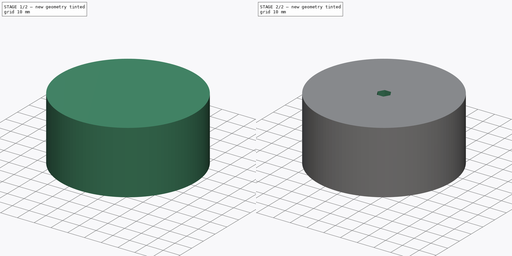
[diagram: build sequence overview — one tinted view per stage of 2, left to right]
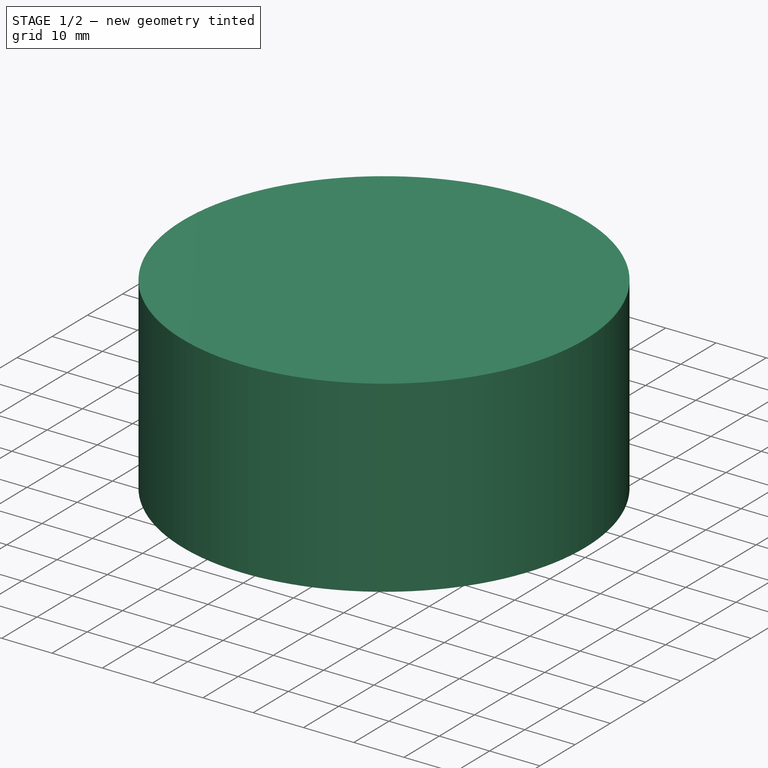
[diagram: stage 1 of 2 — iso view after this stage's code; geometry added in this stage tinted green]
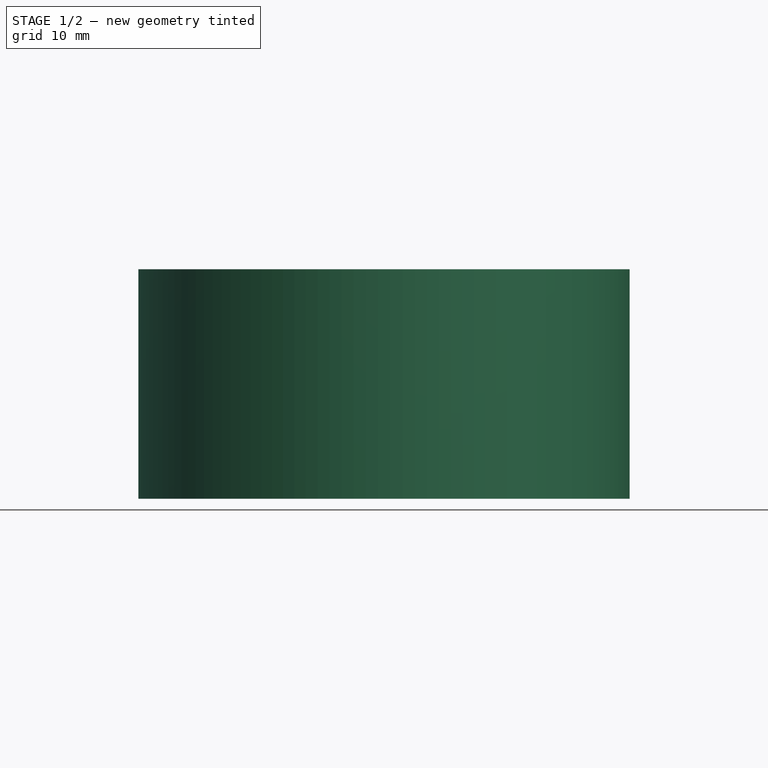
[diagram: stage 1 of 2 — front view after this stage's code; geometry added in this stage tinted green]
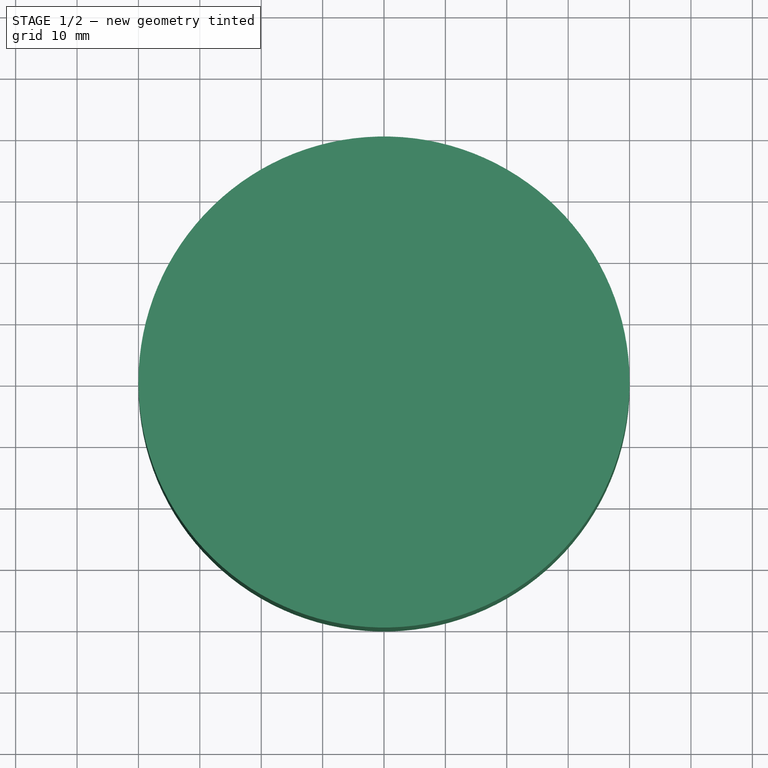
[diagram: stage 1 of 2 — top view after this stage's code; geometry added in this stage tinted green]
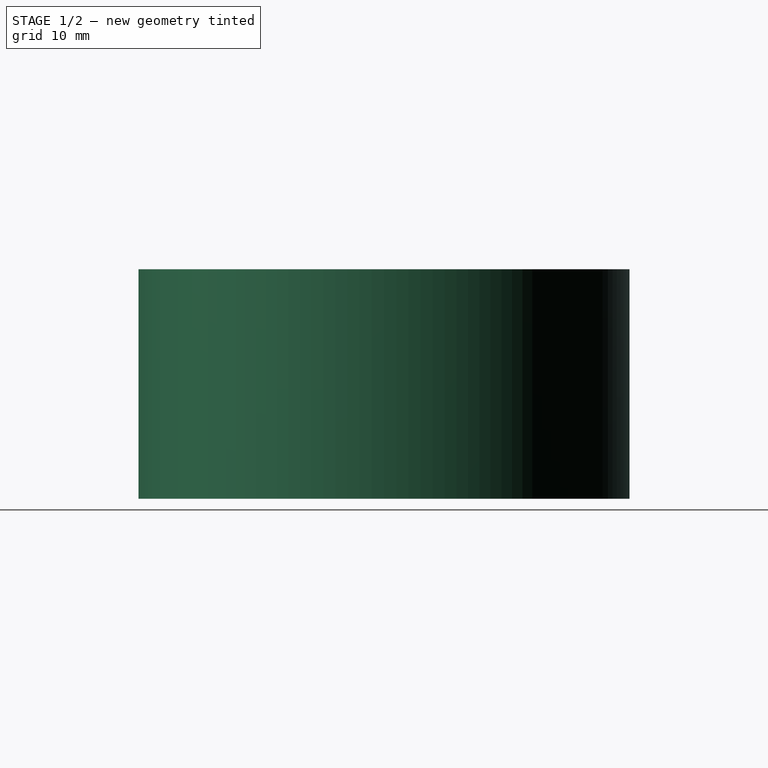
[diagram: stage 1 of 2 — right view after this stage's code; geometry added in this stage tinted green]
FCSTD DOCUMENT  (FreeCAD 1.0R39319 (Git))
Label: hexwheel
License: All rights reserved
LicenseURL: http://en.wikipedia.org/wiki/All_rights_reserved
objects: Sketcher::SketchObject×2, Spreadsheet::Sheet×1, PartDesign::Pad×1, PartDesign::Pocket×1, PartDesign::Body×1
note: 11 computed .brp shape members not serialized (recipe doc carries the construction recipe); baked Part::Feature solids carry a one-line shape summary decoded from their .brp

FEATURE [Spreadsheet::Sheet] Spreadsheet  label="DF-Robot-MechWheel"
  cells = A2='diameter; B2(diameter)=80; A3='hex-center-width; B3(hex_cen_width_y)=6.6; A4='width; B4(width)=37.4; A5='hex-center-width_y; B5(hex_cen_width_x)=7.62; A6='radius; B6(radius)==B2 / 2
FEATURE [Sketcher::SketchObject] Sketch  label="wheel"
  ArcFitTolerance = 1e-06
  AttachmentSupport = -> [XY_Plane]
  FullyConstrained = true
  MakeInternals = false
  MapMode = 5
  expr: Constraints[1] = <<DF-Robot-MechWheel>>.diameter / 2
  expr: Constraints[2] = <<DF-Robot-MechWheel>>.diameter
  sketch-geometry (1):
    g0: Circle CenterX=40 CenterY=0 CenterZ=0 NormalX=0 NormalY=0 NormalZ=1 AngleXU=0 Radius=40
  constraints (3):
    c: Horizontal(g0,g-1)
    c: DistanceX(g-1,g0) = 40
    c: Diameter(g0) = 80
FEATURE [Sketcher::SketchObject] Sketch001
  ArcFitTolerance = 1e-06
  AttachmentSupport = -> [XY_Plane]
  FullyConstrained = true
  MakeInternals = false
  MapMode = 5
  expr: Constraints[17] = <<DF-Robot-MechWheel>>.radius
  expr: Constraints[18] = <<DF-Robot-MechWheel>>.hex_cen_width_y / 2
  expr: Constraints[20] = <<DF-Robot-MechWheel>>.hex_cen_width_y / 2
  sketch-geometry (7):
    g0: LineSegment StartX=43.8105 StartY=-4e-16 StartZ=0 EndX=41.9053 EndY=3.3 EndZ=0
    g1: LineSegment StartX=41.9053 StartY=3.3 StartZ=0 EndX=38.0947 EndY=3.3 EndZ=0
    g2: LineSegment StartX=38.0947 StartY=3.3 StartZ=0 EndX=36.1895 EndY=4e-16 EndZ=0
    g3: LineSegment StartX=36.1895 StartY=4e-16 StartZ=0 EndX=38.0947 EndY=-3.3 EndZ=0
    g4: LineSegment StartX=38.0947 StartY=-3.3 StartZ=0 EndX=41.9053 EndY=-3.3 EndZ=0
    g5: LineSegment StartX=41.9053 StartY=-3.3 StartZ=0 EndX=43.8105 EndY=-4e-16 EndZ=0
    g6: Circle [constr] CenterX=40 CenterY=1e-16 CenterZ=0 NormalX=0 NormalY=0 NormalZ=1 AngleXU=0 Radius=3.81051
  constraints (17):
    c: Coincident(g0,g1)
    c: Coincident(g1,g2)
    c: Coincident(g2,g3)
    c: Coincident(g3,g4)
    c: Coincident(g4,g5)
    c: Coincident(g5,g0)
    c: Equal(g0, g1-g5) x5
    c: PointOnObject(g0,g6)
    c: PointOnObject(g1,g6)
    c: PointOnObject(g2,g6)
    c: PointOnObject(g3,g6)
    c: PointOnObject(g4,g6)
    c: PointOnObject(g5,g6)
    c: DistanceX(g-1,g6) = 40
    c: DistanceY(g3,g-1) = 3.3
    c: DistanceY(g4,g0) = 6.6
    c: DistanceY(g4,g-1) = 3.3
FEATURE [PartDesign::Pad] Pad
  Direction = (0,0,1)
  Length = 37.4
  Length2 = 10
  Profile = -> Sketch
  ReferenceAxis = -> Sketch [N_Axis]
  Suppressed = false
  Type = 0
  expr: Length = <<DF-Robot-MechWheel>>.width
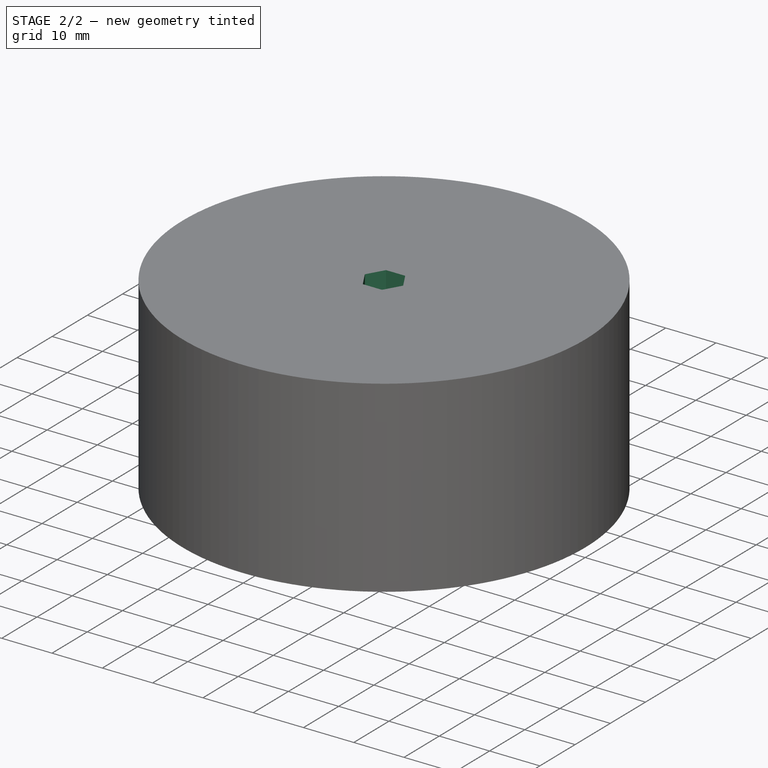
[diagram: stage 2 of 2 — iso view after this stage's code; geometry added in this stage tinted green]
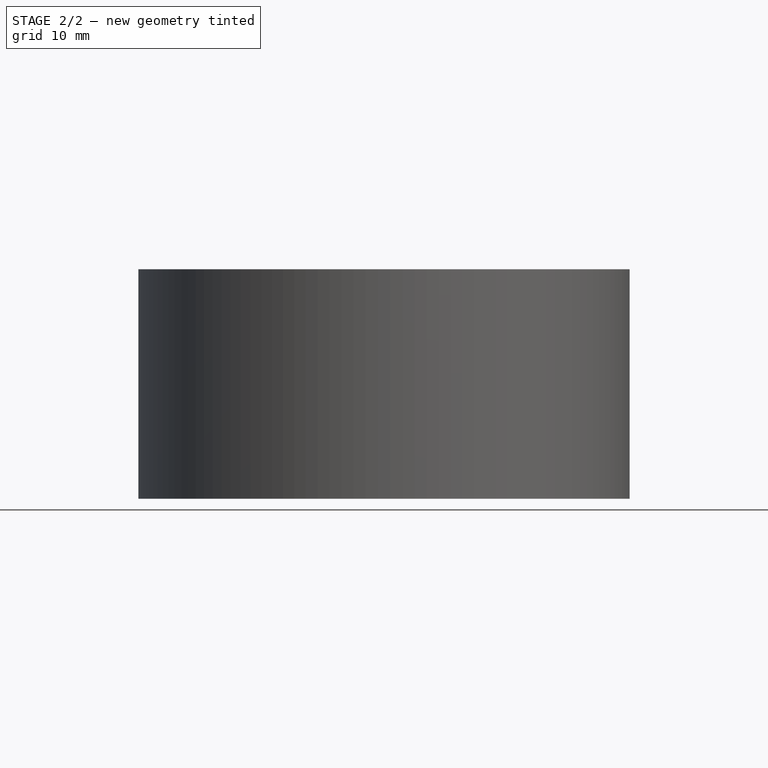
[diagram: stage 2 of 2 — front view after this stage's code; geometry added in this stage tinted green]
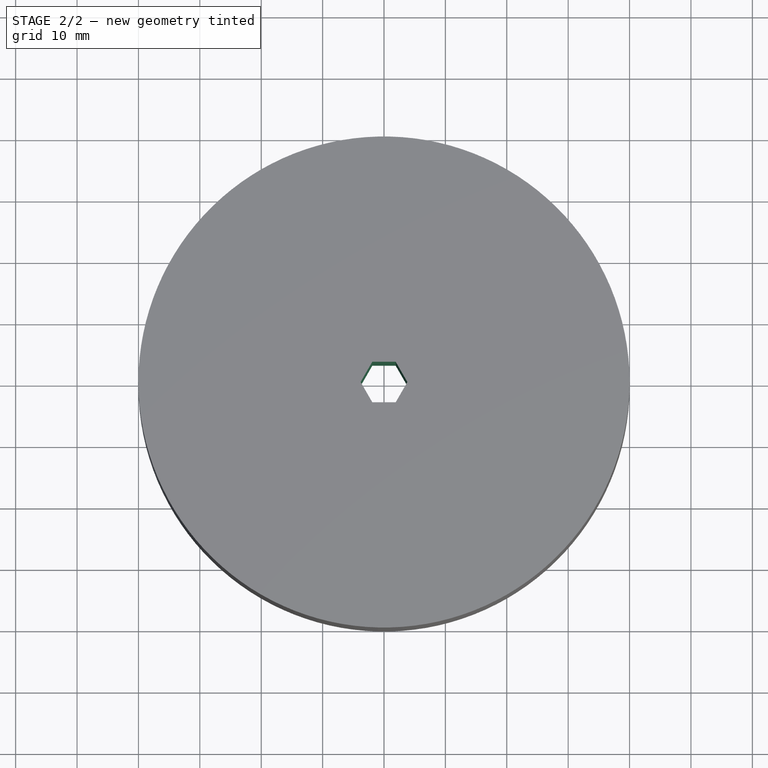
[diagram: stage 2 of 2 — top view after this stage's code; geometry added in this stage tinted green]
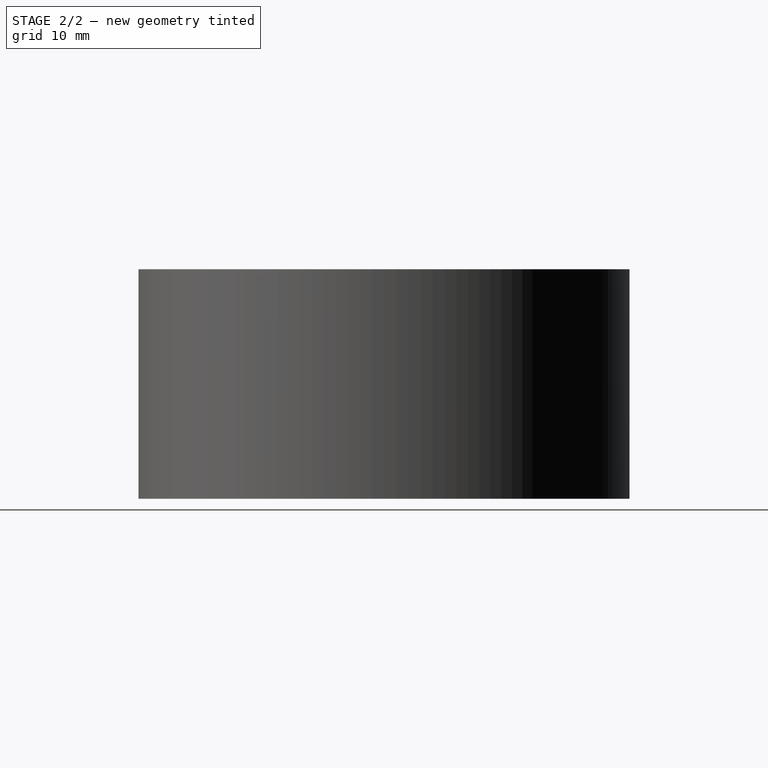
[diagram: stage 2 of 2 — right view after this stage's code; geometry added in this stage tinted green]
FEATURE [PartDesign::Pocket] Pocket
  BaseFeature = -> Pad
  Direction = (0,0,-1)
  Length = 5
  Length2 = 5
  Profile = -> Sketch001
  ReferenceAxis = -> Sketch001 [N_Axis]
  Reversed = true
  Suppressed = false
  Type = 1
FEATURE [PartDesign::Body] Body
  AllowCompound = false
  Group = -> [Sketch,Sketch001,Pad,Pocket]
  Origin = -> Origin
  Tip = -> Pocket
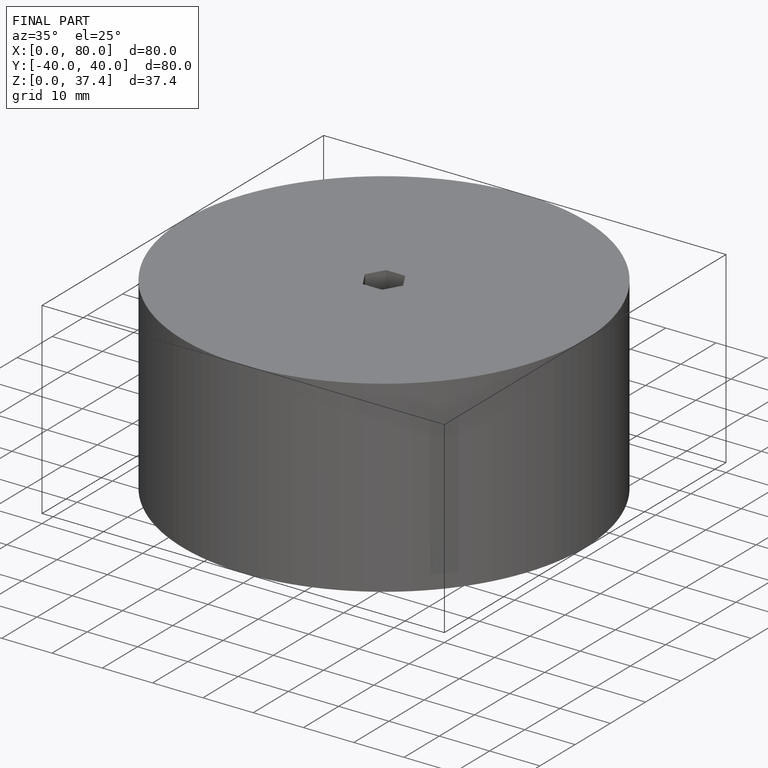
[diagram: finished part — iso view with bounding-box wireframe]
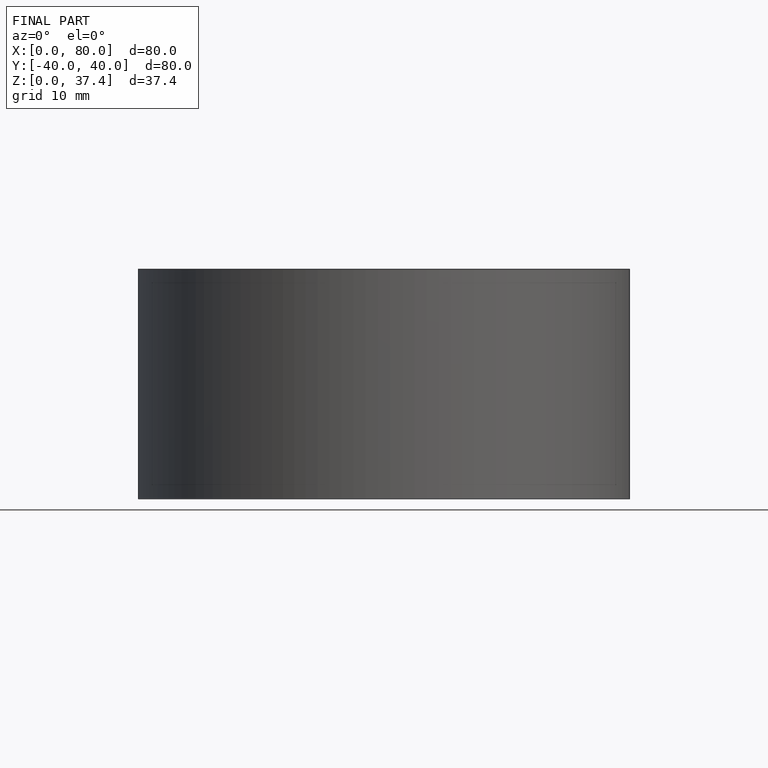
[diagram: finished part — front view with bounding-box wireframe]
